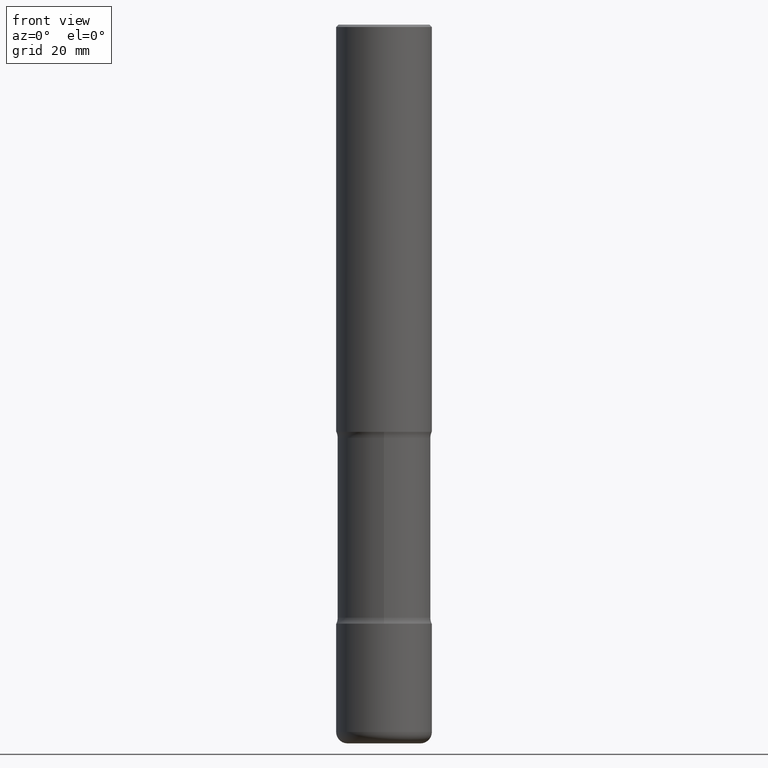
[diagram: clean part render]
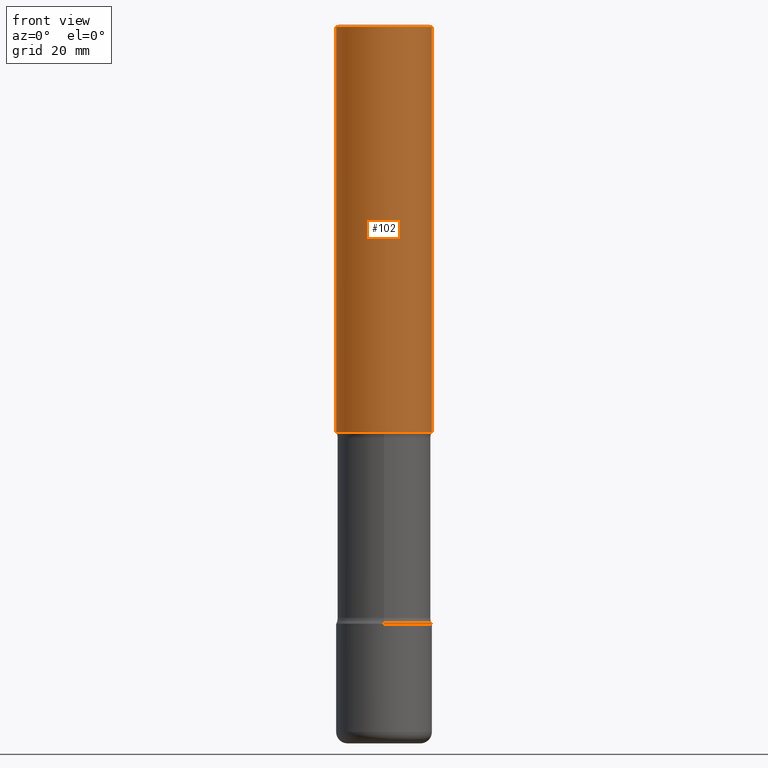
[diagram: same view with one face highlighted and labeled with its STEP entity id]
A machine part, front view. The second image highlights one B-rep face of the part: STEP entity #102.
In plain terms, the highlighted cylindrical surface (partial cylindrical patch) has radius 10 mm, axis along (-0, 0, 1).
Its self-contained STEP definition (entity closure, byte-faithful):
#37 = CARTESIAN_POINT ( 'NONE',  ( -0.3937000000000001054, 2.797406750687515181E-15, -1.936584745033357016E-29 ) ) ;
#62 = CARTESIAN_POINT ( 'NONE',  ( 0.000000000000000000, 0.000000000000000000, 0.000000000000000000 ) ) ;
#83 = DIRECTION ( 'NONE',  ( 1.000000000000000000, -6.982962677686266711E-15, 0.000000000000000000 ) ) ;
#102 = ADVANCED_FACE ( 'NONE', ( #540 ), #150, .T. ) ;
#108 = DIRECTION ( 'NONE',  ( 1.000000000000000000, -6.982962677686266711E-15, 4.876176775795935793E-29 ) ) ;
#146 = VECTOR ( 'NONE', #358, 39.37007874015748143 ) ;
#147 = EDGE_LOOP ( 'NONE', ( #220, #443, #511, #519 ) ) ;
#150 = CYLINDRICAL_SURFACE ( 'NONE', #304, 0.3937000000000001054 ) ;
#171 = CARTESIAN_POINT ( 'NONE',  ( 0.3937000000000001054, -2.749192406205084005E-15, 1.919750796630860452E-29 ) ) ;
#188 = DIRECTION ( 'NONE',  ( -2.445468806185136597E-29, 3.491481338843145583E-15, 1.000000000000000000 ) ) ;
#197 = CIRCLE ( 'NONE', #407, 0.3936999999999999389 ) ;
#202 = EDGE_CURVE ( 'NONE', #376, #512, #197, .T. ) ;
#218 = CARTESIAN_POINT ( 'NONE',  ( -0.3937000000000002720, -3.079454638853263992E-15, -3.346400000000000041 ) ) ;
#220 = ORIENTED_EDGE ( 'NONE', *, *, #264, .F. ) ;
#223 = VERTEX_POINT ( 'NONE', #260 ) ;
#256 = DIRECTION ( 'NONE',  ( -2.445468806185136877E-29, 3.491481338843145188E-15, 1.000000000000000000 ) ) ;
#258 = CIRCLE ( 'NONE', #354, 0.3937000000000002164 ) ;
#260 = CARTESIAN_POINT ( 'NONE',  ( 0.3937000000000002164, -1.443308555850978615E-14, -3.346400000000000041 ) ) ;
#264 = EDGE_CURVE ( 'NONE', #316, #376, #390, .T. ) ;
#273 = CARTESIAN_POINT ( 'NONE',  ( -0.3936999999999999389, 2.679362779428219524E-15, -0.02000000000000008715 ) ) ;
#304 = AXIS2_PLACEMENT_3D ( 'NONE', #62, #460, #108 ) ;
#316 = VERTEX_POINT ( 'NONE', #218 ) ;
#321 = EDGE_CURVE ( 'NONE', #223, #512, #560, .T. ) ;
#354 = AXIS2_PLACEMENT_3D ( 'NONE', #410, #188, #516 ) ;
#356 = CARTESIAN_POINT ( 'NONE',  ( 4.890937612370294178E-31, -6.982962677686321191E-17, -0.02000000000000008715 ) ) ;
#358 = DIRECTION ( 'NONE',  ( -2.445468806185136877E-29, 3.491481338843145188E-15, 1.000000000000000000 ) ) ;
#370 = VECTOR ( 'NONE', #256, 39.37007874015748143 ) ;
#372 = EDGE_CURVE ( 'NONE', #316, #223, #258, .T. ) ;
#376 = VERTEX_POINT ( 'NONE', #273 ) ;
#390 = LINE ( 'NONE', #37, #370 ) ;
#407 = AXIS2_PLACEMENT_3D ( 'NONE', #356, #462, #83 ) ;
#410 = CARTESIAN_POINT ( 'NONE',  ( 8.183516813017942119E-29, -1.168389315230470294E-14, -3.346400000000000041 ) ) ;
#443 = ORIENTED_EDGE ( 'NONE', *, *, #372, .T. ) ;
#449 = CARTESIAN_POINT ( 'NONE',  ( 0.3936999999999999389, -2.770807688499514945E-15, -0.02000000000000008715 ) ) ;
#460 = DIRECTION ( 'NONE',  ( -2.445468806185136597E-29, 3.491481338843145583E-15, 1.000000000000000000 ) ) ;
#462 = DIRECTION ( 'NONE',  ( -2.445468806185136597E-29, 3.491481338843145583E-15, 1.000000000000000000 ) ) ;
#511 = ORIENTED_EDGE ( 'NONE', *, *, #321, .T. ) ;
#512 = VERTEX_POINT ( 'NONE', #449 ) ;
#516 = DIRECTION ( 'NONE',  ( 1.000000000000000000, -6.982962677686265133E-15, 0.000000000000000000 ) ) ;
#519 = ORIENTED_EDGE ( 'NONE', *, *, #202, .F. ) ;
#540 = FACE_OUTER_BOUND ( 'NONE', #147, .T. ) ;
#560 = LINE ( 'NONE', #171, #146 ) ;